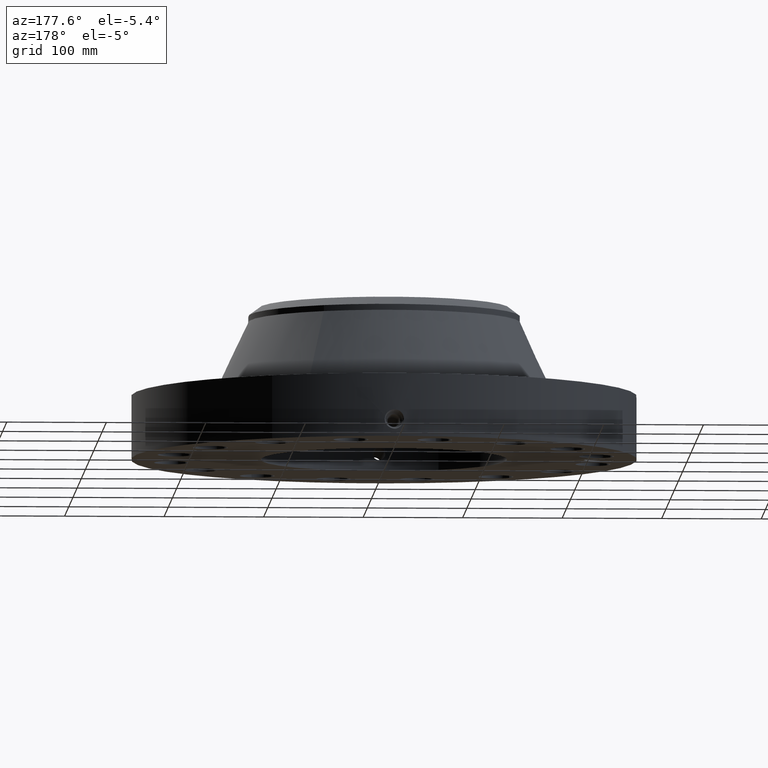
[diagram: clean part render]
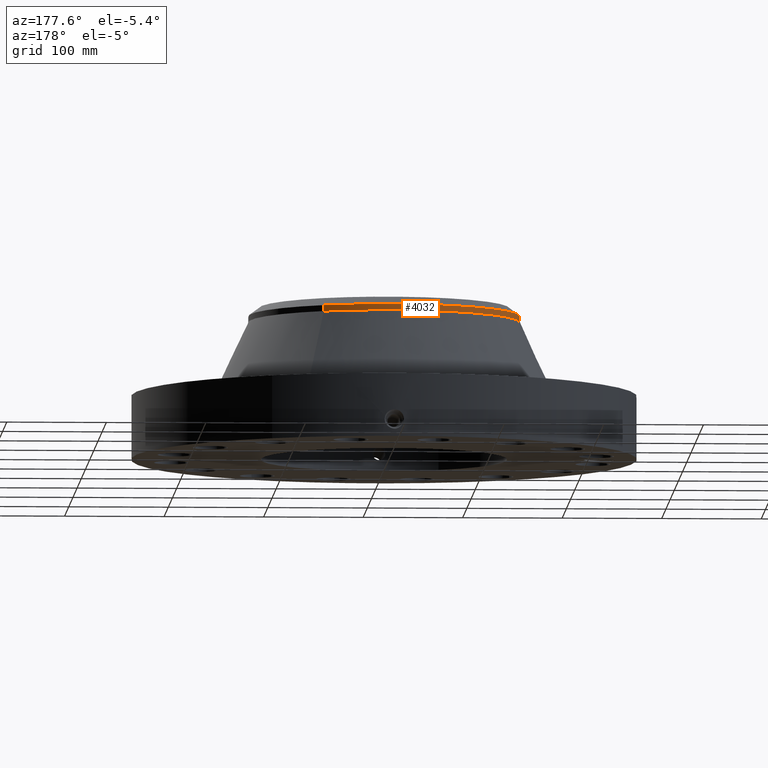
[diagram: same view with one face highlighted and labeled with its STEP entity id]
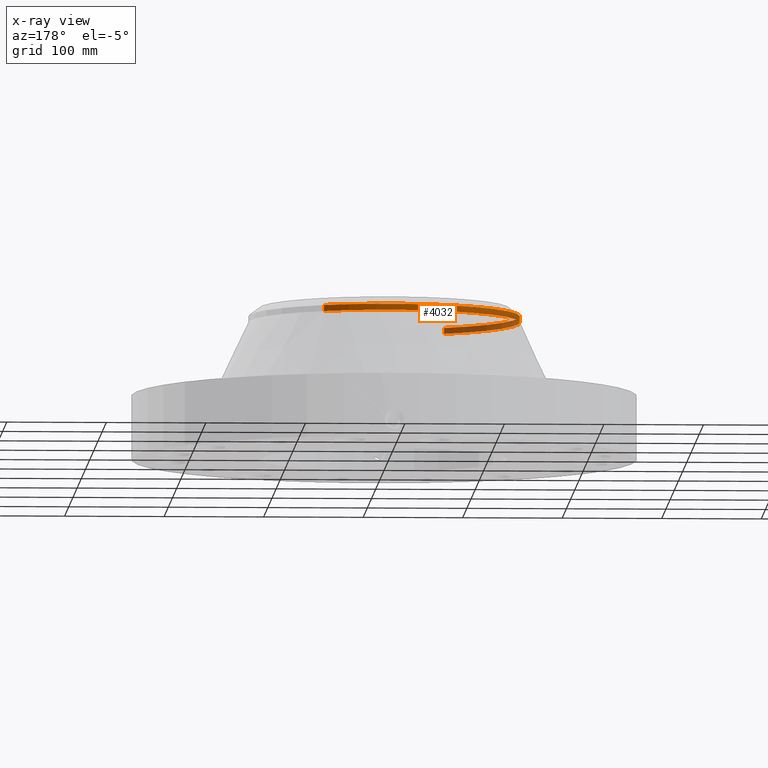
[diagram: x-ray of the same camera — body ghosted, the highlighted face saturated]
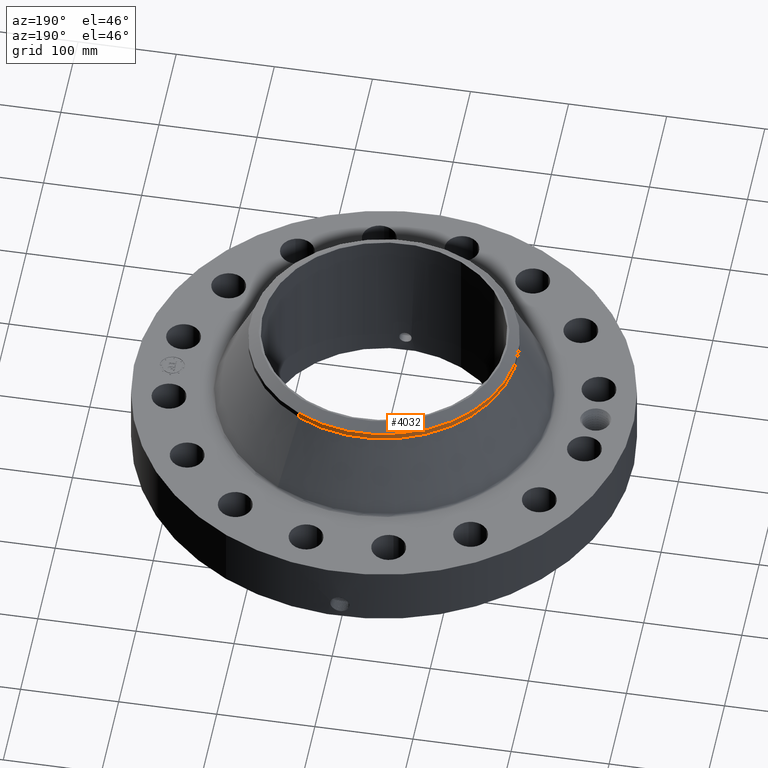
[diagram: same view with one face highlighted and labeled with its STEP entity id]
A machine part, auxiliary view. The second image highlights one B-rep face of the part: STEP entity #4032.
The next image is the same camera in x-ray: the body ghosted, the highlighted face saturated — about 26% of this face is hidden behind the body in this view.
A second angle (auxiliary view) of the same face is appended — the face is thin or edge-on in the first view.
In plain terms, the highlighted cylindrical surface (partial cylindrical patch) has radius 136.525 mm, axis along (0, 0, -1).
Its self-contained STEP definition (entity closure, byte-faithful):
#3230=AXIS2_PLACEMENT_3D('Circle Axis2P3D',#3228,#3229,$) ;
#3659=AXIS2_PLACEMENT_3D('Circle Axis2P3D',#3657,#3658,$) ;
#3686=AXIS2_PLACEMENT_3D('Circle Axis2P3D',#3684,#3685,$) ;
#4005=AXIS2_PLACEMENT_3D('Cylinder Axis2P3D',#4002,#4003,#4004) ;
#3206=CARTESIAN_POINT('Vertex',(2.57691227001,4.71700627018,5.69053548147)) ;
#3213=CARTESIAN_POINT('Vertex',(-2.57691227001,-4.71700627018,5.69053548147)) ;
#3228=CARTESIAN_POINT('Axis2P3D Location',(0.,0.,5.69053548147)) ;
#3654=CARTESIAN_POINT('Vertex',(-2.57691227001,4.71700627018,5.92675595391)) ;
#3657=CARTESIAN_POINT('Axis2P3D Location',(0.,0.,5.92675595391)) ;
#3661=CARTESIAN_POINT('Vertex',(-2.57691227001,-4.71700627018,5.92675595391)) ;
#3681=CARTESIAN_POINT('Vertex',(2.57691227001,4.71700627018,5.92675595391)) ;
#3684=CARTESIAN_POINT('Axis2P3D Location',(0.,0.,5.92675595391)) ;
#4002=CARTESIAN_POINT('Axis2P3D Location',(0.,0.,3.25000000001)) ;
#4007=CARTESIAN_POINT('Line Origine',(-2.57691227001,-4.71700627018,5.80864571769)) ;
#4012=CARTESIAN_POINT('Line Origine',(2.57691227001,4.71700627018,5.80864571769)) ;
#3229=DIRECTION('Axis2P3D Direction',(0.,0.,-0.0393700787402)) ;
#3658=DIRECTION('Axis2P3D Direction',(0.,0.,-0.0393700787402)) ;
#3685=DIRECTION('Axis2P3D Direction',(0.,0.,-0.0393700787402)) ;
#4003=DIRECTION('Axis2P3D Direction',(0.,0.,-0.0393700787402)) ;
#4004=DIRECTION('Axis2P3D XDirection',(-0.0188750212049,-0.0345504945626,0.)) ;
#4008=DIRECTION('Vector Direction',(0.,0.,-0.0393700787402)) ;
#4013=DIRECTION('Vector Direction',(0.,0.,-0.0393700787402)) ;
#4009=VECTOR('Line Direction',#4008,0.0393700787402) ;
#4014=VECTOR('Line Direction',#4013,0.0393700787402) ;
#4026=ORIENTED_EDGE('',*,*,#4016,.F.) ;
#4027=ORIENTED_EDGE('',*,*,#3232,.F.) ;
#4028=ORIENTED_EDGE('',*,*,#4011,.T.) ;
#4029=ORIENTED_EDGE('',*,*,#3663,.F.) ;
#4030=ORIENTED_EDGE('',*,*,#3688,.T.) ;
#4032=ADVANCED_FACE('PartBody',(#4031),#4006,.T.) ;
#3231=CIRCLE('generated circle',#3230,5.37500000002) ;
#3660=CIRCLE('generated circle',#3659,5.37500000002) ;
#3687=CIRCLE('generated circle',#3686,5.37500000002) ;
#4006=CYLINDRICAL_SURFACE('generated cylinder',#4005,5.37500000002) ;
#3232=EDGE_CURVE('',#3214,#3207,#3231,.T.) ;
#3663=EDGE_CURVE('',#3655,#3662,#3660,.F.) ;
#3688=EDGE_CURVE('',#3655,#3682,#3687,.T.) ;
#4011=EDGE_CURVE('',#3214,#3662,#4010,.F.) ;
#4016=EDGE_CURVE('',#3207,#3682,#4015,.F.) ;
#4025=EDGE_LOOP('',(#4026,#4027,#4028,#4029,#4030)) ;
#4031=FACE_OUTER_BOUND('',#4025,.T.) ;
#4010=LINE('Line',#4007,#4009) ;
#4015=LINE('Line',#4012,#4014) ;
#3207=VERTEX_POINT('',#3206) ;
#3214=VERTEX_POINT('',#3213) ;
#3655=VERTEX_POINT('',#3654) ;
#3662=VERTEX_POINT('',#3661) ;
#3682=VERTEX_POINT('',#3681) ;